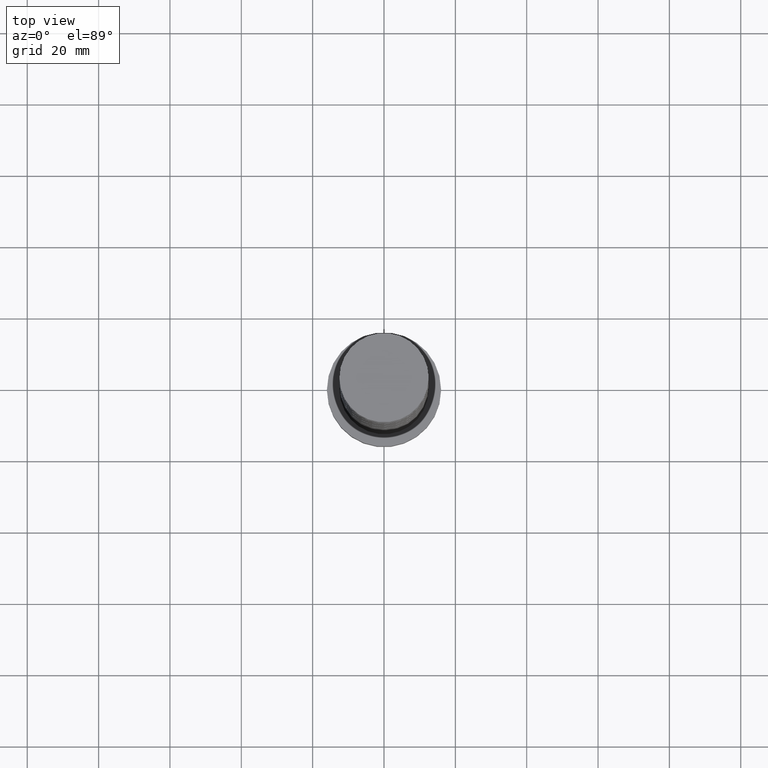
[diagram: clean part render]
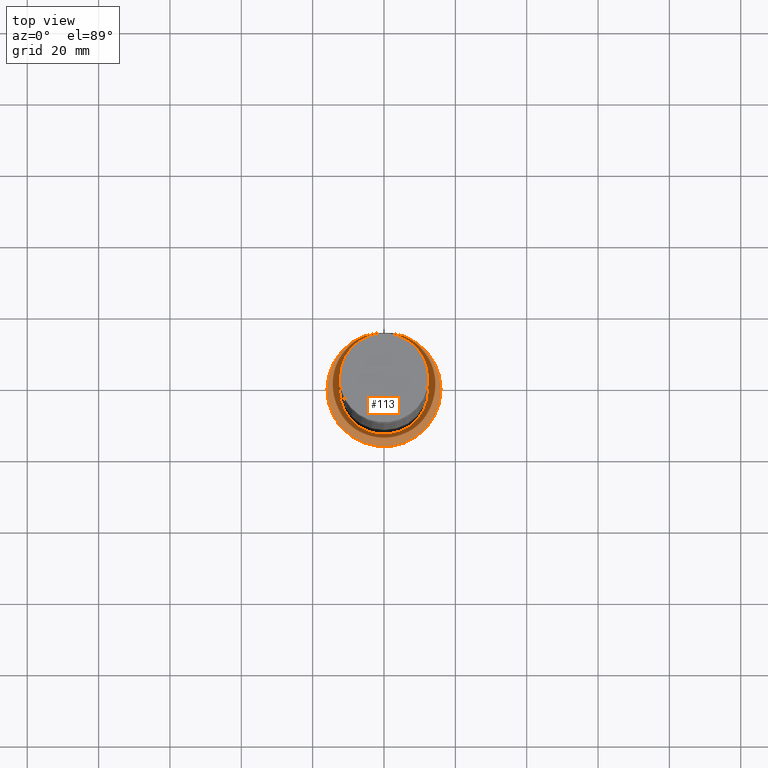
[diagram: same view with one face highlighted and labeled with its STEP entity id]
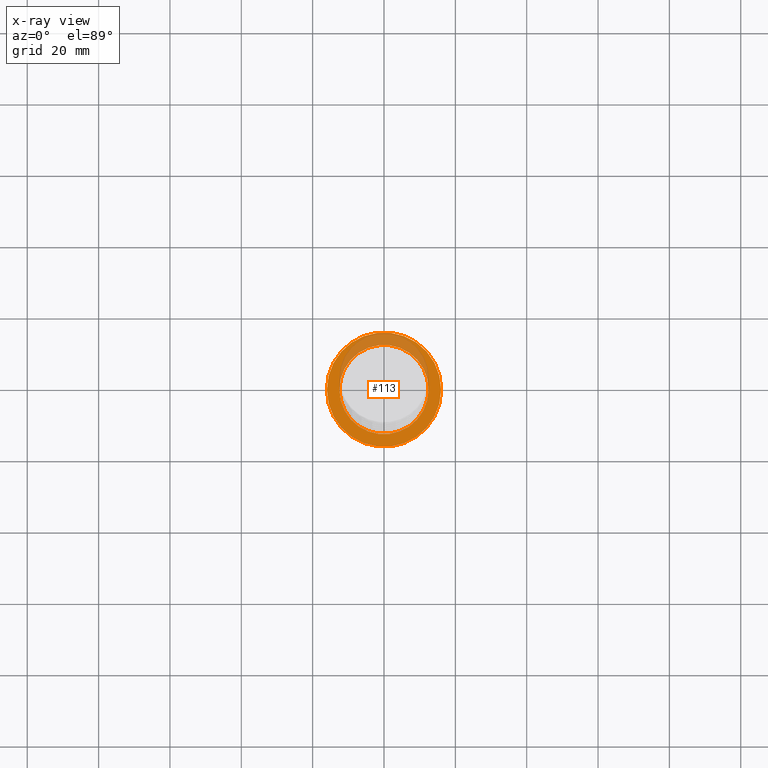
[diagram: x-ray of the same camera — body ghosted, the highlighted face saturated]
A machine part, top view. The second image highlights one B-rep face of the part: STEP entity #113.
The next image is the same camera in x-ray: the body ghosted, the highlighted face saturated — about 27% of this face is hidden behind the body in this view.
In plain terms, the highlighted planar face has unit normal (0, 0, 1).
Its self-contained STEP definition (entity closure, byte-faithful):
#27 = EDGE_LOOP ( 'NONE', ( #1393, #670 ) ) ;
#97 = CARTESIAN_POINT ( 'NONE',  ( 12.50000000000000000, 1.530808498934191521E-15, 10.00000000000000000 ) ) ;
#101 = CIRCLE ( 'NONE', #1397, 12.50000000000000000 ) ;
#113 = ADVANCED_FACE ( 'NONE', ( #950, #971 ), #705, .T. ) ;
#179 = CIRCLE ( 'NONE', #1623, 12.50000000000000000 ) ;
#204 = ORIENTED_EDGE ( 'NONE', *, *, #846, .F. ) ;
#219 = CARTESIAN_POINT ( 'NONE',  ( 0.000000000000000000, 0.000000000000000000, 10.00000000000000000 ) ) ;
#237 = DIRECTION ( 'NONE',  ( 1.000000000000000000, 0.000000000000000000, 0.000000000000000000 ) ) ;
#268 = AXIS2_PLACEMENT_3D ( 'NONE', #449, #1521, #991 ) ;
#317 = CARTESIAN_POINT ( 'NONE',  ( 0.000000000000000000, 0.000000000000000000, 10.00000000000000000 ) ) ;
#354 = DIRECTION ( 'NONE',  ( 0.000000000000000000, 0.000000000000000000, 1.000000000000000000 ) ) ;
#449 = CARTESIAN_POINT ( 'NONE',  ( 0.000000000000000000, 0.000000000000000000, 10.00000000000000000 ) ) ;
#480 = EDGE_CURVE ( 'NONE', #1424, #1011, #1537, .T. ) ;
#520 = ORIENTED_EDGE ( 'NONE', *, *, #1329, .F. ) ;
#574 = VERTEX_POINT ( 'NONE', #1478 ) ;
#635 = CARTESIAN_POINT ( 'NONE',  ( -16.00000000000000000, 0.000000000000000000, 10.00000000000000000 ) ) ;
#646 = DIRECTION ( 'NONE',  ( 0.000000000000000000, 0.000000000000000000, 1.000000000000000000 ) ) ;
#670 = ORIENTED_EDGE ( 'NONE', *, *, #1297, .T. ) ;
#695 = DIRECTION ( 'NONE',  ( 1.000000000000000000, 0.000000000000000000, -0.000000000000000000 ) ) ;
#705 = PLANE ( 'NONE',  #834 ) ;
#750 = EDGE_LOOP ( 'NONE', ( #204, #520 ) ) ;
#769 = CARTESIAN_POINT ( 'NONE',  ( 16.00000000000000000, 1.959434878635765131E-15, 10.00000000000000000 ) ) ;
#816 = DIRECTION ( 'NONE',  ( 0.000000000000000000, 0.000000000000000000, 1.000000000000000000 ) ) ;
#834 = AXIS2_PLACEMENT_3D ( 'NONE', #1111, #816, #695 ) ;
#846 = EDGE_CURVE ( 'NONE', #574, #1002, #101, .T. ) ;
#852 = DIRECTION ( 'NONE',  ( 0.000000000000000000, 0.000000000000000000, 1.000000000000000000 ) ) ;
#950 = FACE_BOUND ( 'NONE', #750, .T. ) ;
#968 = DIRECTION ( 'NONE',  ( 1.000000000000000000, 0.000000000000000000, 0.000000000000000000 ) ) ;
#971 = FACE_OUTER_BOUND ( 'NONE', #27, .T. ) ;
#991 = DIRECTION ( 'NONE',  ( 1.000000000000000000, 0.000000000000000000, 0.000000000000000000 ) ) ;
#1002 = VERTEX_POINT ( 'NONE', #97 ) ;
#1011 = VERTEX_POINT ( 'NONE', #769 ) ;
#1111 = CARTESIAN_POINT ( 'NONE',  ( 0.000000000000000000, 0.000000000000000000, 10.00000000000000000 ) ) ;
#1132 = CIRCLE ( 'NONE', #268, 16.00000000000000000 ) ;
#1297 = EDGE_CURVE ( 'NONE', #1011, #1424, #1132, .T. ) ;
#1329 = EDGE_CURVE ( 'NONE', #1002, #574, #179, .T. ) ;
#1393 = ORIENTED_EDGE ( 'NONE', *, *, #480, .T. ) ;
#1394 = DIRECTION ( 'NONE',  ( 1.000000000000000000, 0.000000000000000000, 0.000000000000000000 ) ) ;
#1397 = AXIS2_PLACEMENT_3D ( 'NONE', #219, #646, #237 ) ;
#1424 = VERTEX_POINT ( 'NONE', #635 ) ;
#1478 = CARTESIAN_POINT ( 'NONE',  ( -12.50000000000000000, 0.000000000000000000, 10.00000000000000000 ) ) ;
#1514 = AXIS2_PLACEMENT_3D ( 'NONE', #1565, #354, #968 ) ;
#1521 = DIRECTION ( 'NONE',  ( 0.000000000000000000, 0.000000000000000000, 1.000000000000000000 ) ) ;
#1537 = CIRCLE ( 'NONE', #1514, 16.00000000000000000 ) ;
#1565 = CARTESIAN_POINT ( 'NONE',  ( 0.000000000000000000, 0.000000000000000000, 10.00000000000000000 ) ) ;
#1623 = AXIS2_PLACEMENT_3D ( 'NONE', #317, #852, #1394 ) ;